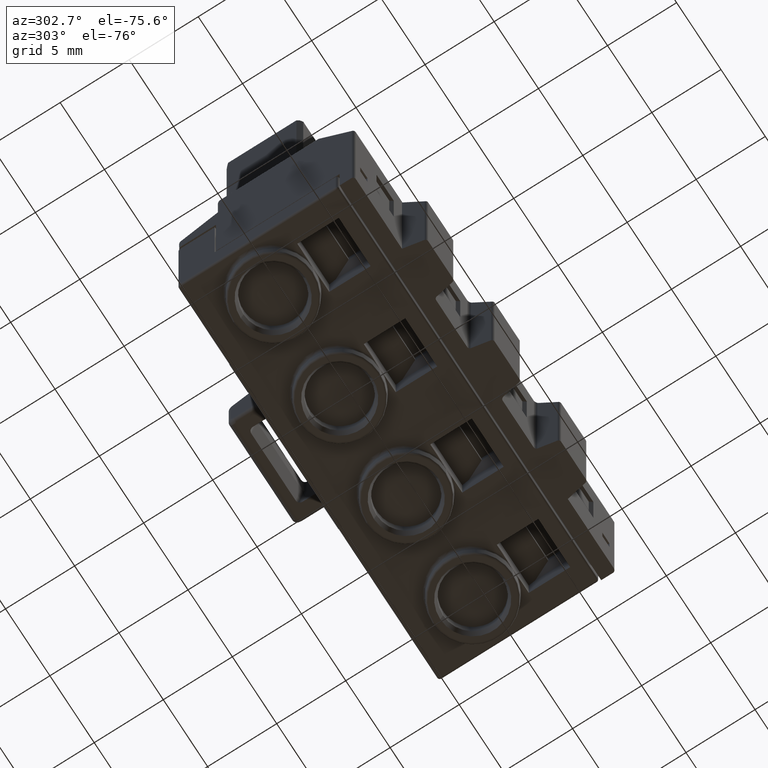
[diagram: clean part render]
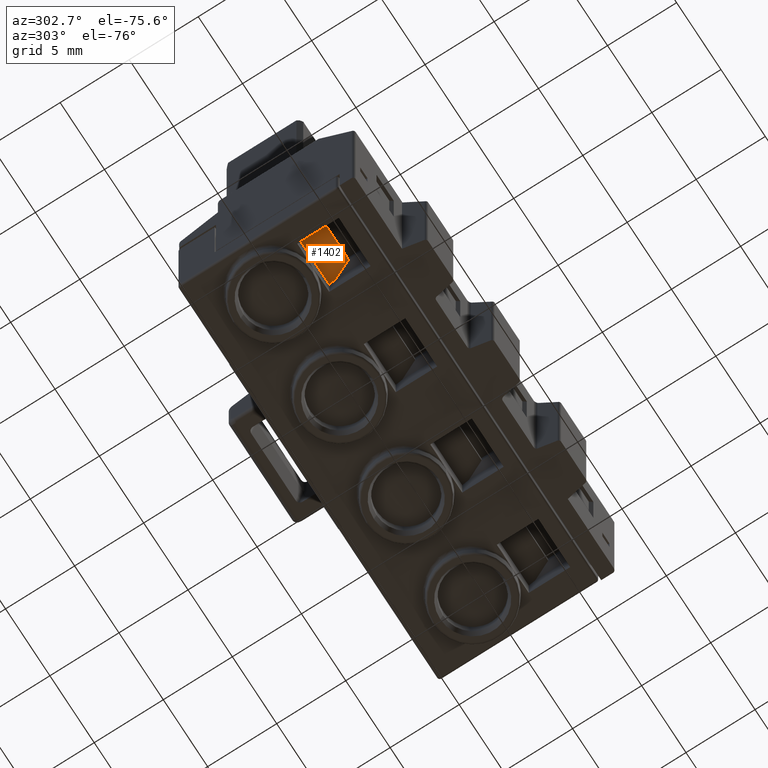
[diagram: same view with one face highlighted and labeled with its STEP entity id]
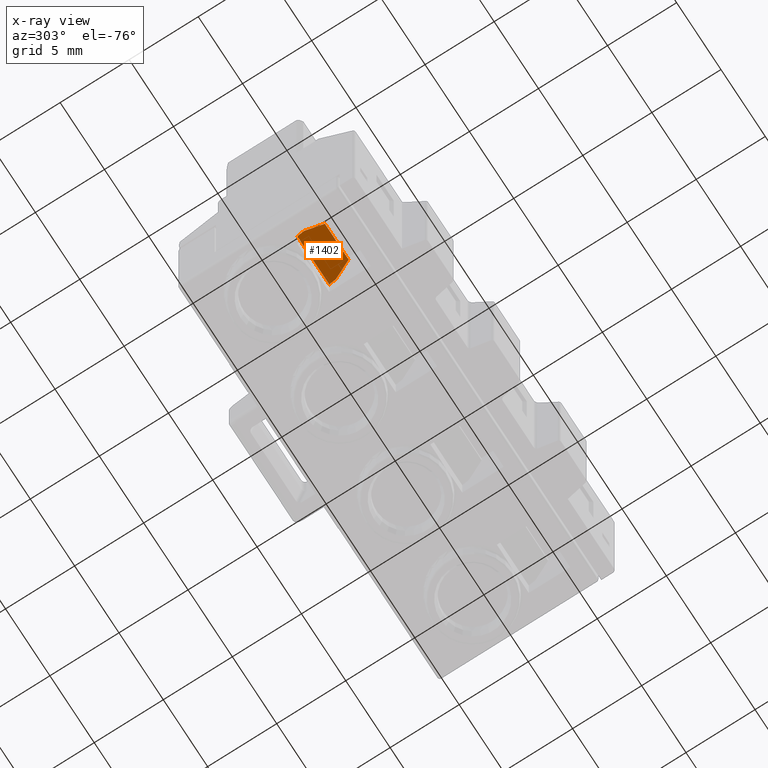
[diagram: x-ray of the same camera — body ghosted, the highlighted face saturated]
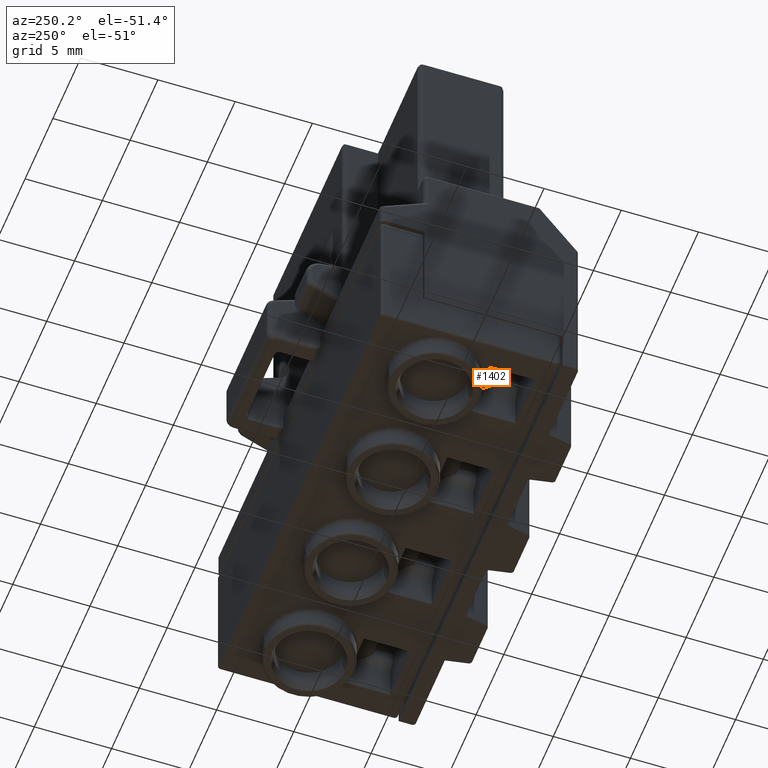
[diagram: same view with one face highlighted and labeled with its STEP entity id]
A machine part, auxiliary view. The second image highlights one B-rep face of the part: STEP entity #1402.
The next image is the same camera in x-ray: the body ghosted, the highlighted face saturated — about 0% of this face is hidden behind the body in this view.
A second angle (auxiliary view) of the same face is appended — the face is thin or edge-on in the first view.
In plain terms, the highlighted planar face has unit normal (0, -0.507, -0.8619).
Its self-contained STEP definition (entity closure, byte-faithful):
#733=FACE_OUTER_BOUND('',#2639,.T.);
#1402=ADVANCED_FACE('',(#733),#1969,.T.);
#1969=PLANE('',#13521);
#2639=EDGE_LOOP('',(#8107,#8108,#8109,#8110,#8111,#8112));
#3780=LINE('',#19853,#5287);
#3896=LINE('',#20155,#5403);
#3901=LINE('',#20165,#5408);
#3905=LINE('',#20173,#5412);
#3906=LINE('',#20175,#5413);
#3907=LINE('',#20177,#5414);
#5287=VECTOR('',#15690,1.);
#5403=VECTOR('',#16004,1.);
#5408=VECTOR('',#16011,1.);
#5412=VECTOR('',#16019,1.);
#5413=VECTOR('',#16020,1.);
#5414=VECTOR('',#16021,1.);
#8107=ORIENTED_EDGE('',*,*,#12020,.F.);
#8108=ORIENTED_EDGE('',*,*,#12024,.T.);
#8109=ORIENTED_EDGE('',*,*,#12025,.T.);
#8110=ORIENTED_EDGE('',*,*,#12026,.T.);
#8111=ORIENTED_EDGE('',*,*,#12015,.F.);
#8112=ORIENTED_EDGE('',*,*,#11859,.T.);
#10358=VERTEX_POINT('',#19850);
#10359=VERTEX_POINT('',#19852);
#10447=VERTEX_POINT('',#20156);
#10450=VERTEX_POINT('',#20164);
#10453=VERTEX_POINT('',#20174);
#10454=VERTEX_POINT('',#20176);
#11859=EDGE_CURVE('',#10358,#10359,#3780,.T.);
#12015=EDGE_CURVE('',#10358,#10447,#3896,.T.);
#12020=EDGE_CURVE('',#10450,#10359,#3901,.T.);
#12024=EDGE_CURVE('',#10450,#10453,#3905,.T.);
#12025=EDGE_CURVE('',#10453,#10454,#3906,.T.);
#12026=EDGE_CURVE('',#10454,#10447,#3907,.T.);
#13521=AXIS2_PLACEMENT_3D('',#20178,#16022,#16023);
#15690=DIRECTION('',(-1.,0.,0.));
#16004=DIRECTION('',(0.309895601896387,0.819501702792766,-0.48205982517218));
#16011=DIRECTION('',(0.309895601896387,-0.819501702792766,0.48205982517218));
#16019=DIRECTION('',(0.,0.861934215157775,-0.507020126563385));
#16020=DIRECTION('',(1.,0.,0.));
#16021=DIRECTION('',(0.,-0.861934215157775,0.507020126563385));
#16022=DIRECTION('',(0.,-0.507020126563385,-0.861934215157775));
#16023=DIRECTION('',(0.,0.861934215157775,-0.507020126563385));
#19850=CARTESIAN_POINT('',(-21.16103038819,-3.79,-24.132841618371));
#19852=CARTESIAN_POINT('',(-23.83896961181,-3.79,-24.132841618371));
#19853=CARTESIAN_POINT('',(-21.16103038819,-3.79,-24.132841618371));
#20155=CARTESIAN_POINT('',(-21.16103038819,-3.79,-24.132841618371));
#20156=CARTESIAN_POINT('',(-20.7,-2.57083075123,-24.850000000001));
#20164=CARTESIAN_POINT('',(-24.3,-2.57083075123,-24.850000000001));
#20165=CARTESIAN_POINT('',(-24.3,-2.57083075123,-24.850000000001));
#20173=CARTESIAN_POINT('',(-24.3,-2.57083075123,-24.850000000001));
#20174=CARTESIAN_POINT('',(-24.3,-2.09,-25.132841618371));
#20175=CARTESIAN_POINT('',(-24.3,-2.09,-25.132841618371));
#20176=CARTESIAN_POINT('',(-20.7,-2.09,-25.132841618371));
#20177=CARTESIAN_POINT('',(-20.7,-2.09,-25.132841618371));
#20178=CARTESIAN_POINT('',(-22.5,-2.954789396203,-24.624141973551));